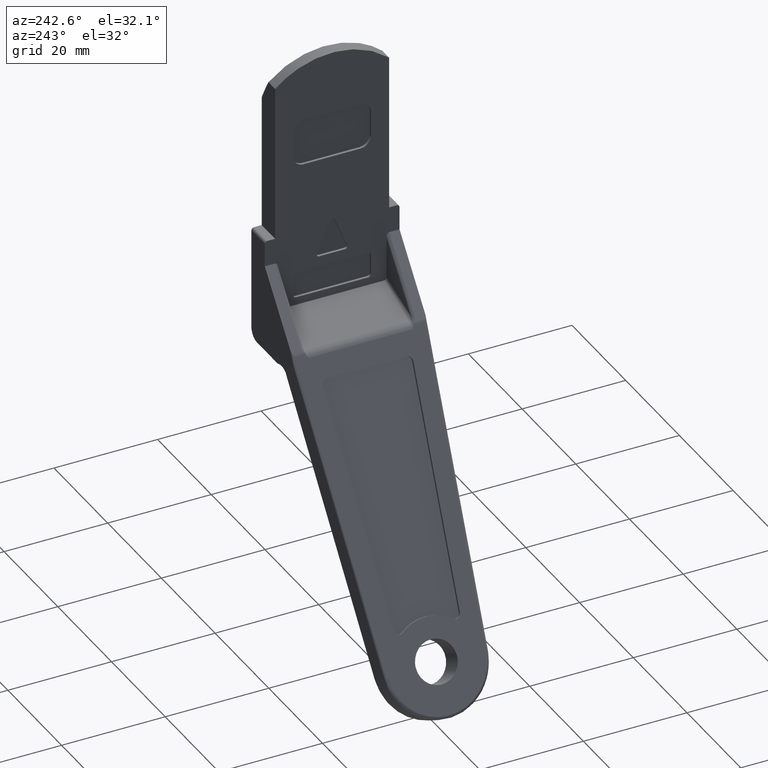
[diagram: clean part render]
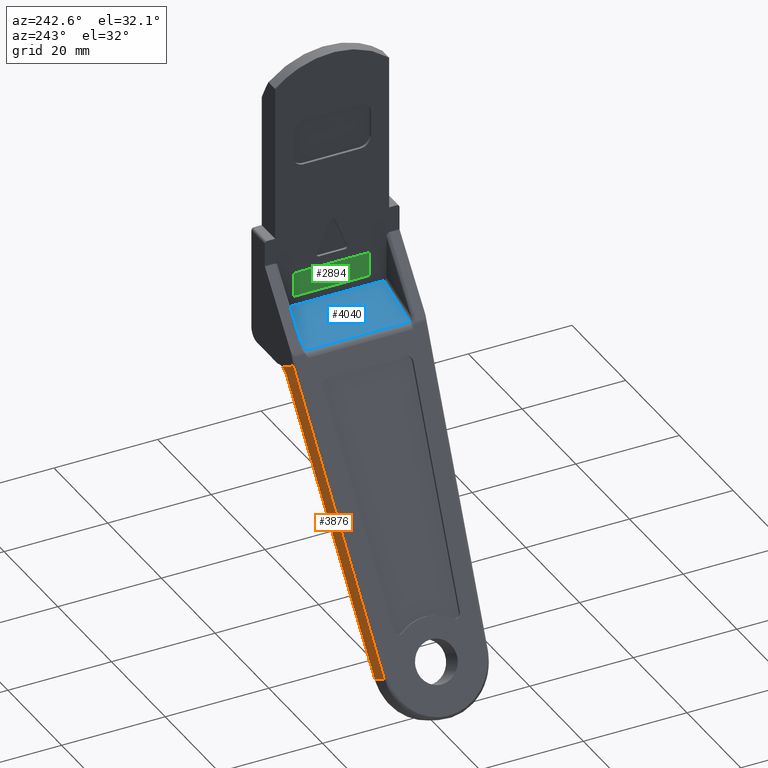
[diagram: same view with three faces highlighted in distinct colors, each labeled with its STEP entity id]
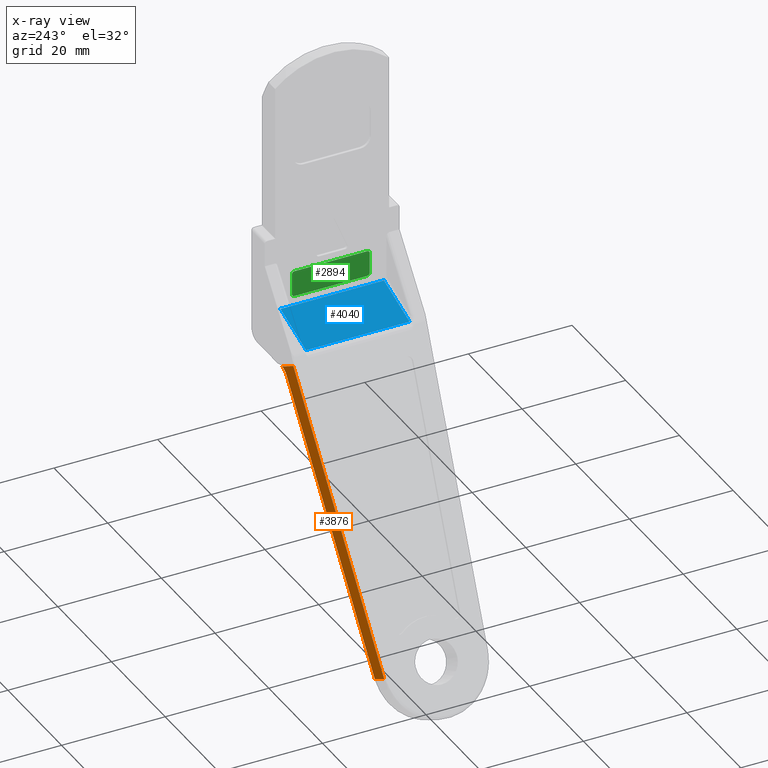
[diagram: x-ray of the same camera — body ghosted, the three highlighted faces saturated]
A machine part, auxiliary view with three faces highlighted in distinct colors.
The next image is the same camera in x-ray (body ghosted, the three faces saturated) — at least one of them is partly hidden behind the body in this view.
Their STEP definitions:

[orange] entity #3876 — the highlighted face is a freeform B-spline surface patch.
#470=CARTESIAN_POINT('',(-40.201222914413847,9.985602287830501,-87.845950522211709));
#471=VERTEX_POINT('',#470);
#537=CARTESIAN_POINT('',(-13.023773166387141,12.905514471618201,-40.773227605430357));
#538=VERTEX_POINT('',#537);
#562=CARTESIAN_POINT('',(-13.023773166387141,12.905514471618201,-40.773227605430357));
#563=CARTESIAN_POINT('',(-40.201222914413847,9.985602287830501,-87.845950522211709));
#564=QUASI_UNIFORM_CURVE('',1,(#562,#563),.UNSPECIFIED.,.F.,.U.);
#565=EDGE_CURVE('',#538,#471,#564,.T.);
#681=CARTESIAN_POINT('',(-11.535973462332599,12.999280114391521,-39.616712876335647));
#682=VERTEX_POINT('',#681);
#683=CARTESIAN_POINT('',(-11.535973462332530,12.999280114391411,-39.616712876335683));
#684=CARTESIAN_POINT('',(-12.515160426199587,12.960159191018194,-39.892284847573968));
#685=CARTESIAN_POINT('',(-13.023773166387141,12.905514471618201,-40.773227605430357));
#693=(BOUNDED_CURVE()B_SPLINE_CURVE(2,(#683,#684,#685),.UNSPECIFIED.,.F.,.U.)CURVE()GEOMETRIC_REPRESENTATION_ITEM()QUASI_UNIFORM_CURVE()RATIONAL_B_SPLINE_CURVE((1.0,0.926259705014033,1.0))REPRESENTATION_ITEM(''));
#694=EDGE_CURVE('',#682,#538,#693,.T.);
#744=CARTESIAN_POINT('',(-43.665324437025554,9.985602287830501,-85.845950538797112));
#745=VERTEX_POINT('',#744);
#811=CARTESIAN_POINT('',(-15.615138791191150,12.999280114391521,-37.261605632275653));
#812=VERTEX_POINT('',#811);
#826=CARTESIAN_POINT('',(-43.665324437025554,9.985602287830501,-85.845950538797112));
#827=CARTESIAN_POINT('',(-15.615138791191150,12.999280114391521,-37.261605632275653));
#828=QUASI_UNIFORM_CURVE('',1,(#826,#827),.UNSPECIFIED.,.F.,.U.);
#829=EDGE_CURVE('',#745,#812,#828,.T.);
#854=CARTESIAN_POINT('',(-15.615138791191150,12.999280114391521,-37.261605632275653));
#855=CARTESIAN_POINT('',(-11.535973462332599,12.999280114391521,-39.616712876335647));
#856=QUASI_UNIFORM_CURVE('',1,(#854,#855),.UNSPECIFIED.,.F.,.U.);
#857=EDGE_CURVE('',#812,#682,#856,.T.);
#3860=CARTESIAN_POINT('',(-45.270186360760633,12.322093521251981,-34.696408978296638));
#3861=CARTESIAN_POINT('',(-45.270186360760633,9.732126893975966,-90.367846956961770));
#3862=CARTESIAN_POINT('',(-9.931111538597529,13.269240425720520,-34.740472486673077));
#3863=CARTESIAN_POINT('',(-9.931111538597529,10.679273798444500,-90.411910465338195));
#3864=B_SPLINE_SURFACE_WITH_KNOTS('',1,1,((#3860,#3862),(#3861,#3863)),.UNSPECIFIED.,.F.,.F.,.U.,(2,2),(2,2),(0.0,55.731651094712440),(0.0,35.351792573190068),.UNSPECIFIED.);
#3865=ORIENTED_EDGE('',*,*,#857,.T.);
#3866=ORIENTED_EDGE('',*,*,#694,.T.);
#3867=ORIENTED_EDGE('',*,*,#565,.T.);
#3868=CARTESIAN_POINT('',(-40.201222914413847,9.985602287830501,-87.845950522211709));
#3869=CARTESIAN_POINT('',(-43.665324437025554,9.985602287830501,-85.845950538797112));
#3870=QUASI_UNIFORM_CURVE('',1,(#3868,#3869),.UNSPECIFIED.,.F.,.U.);
#3871=EDGE_CURVE('',#471,#745,#3870,.T.);
#3872=ORIENTED_EDGE('',*,*,#3871,.T.);
#3873=ORIENTED_EDGE('',*,*,#829,.T.);
#3874=EDGE_LOOP('',(#3865,#3866,#3867,#3872,#3873));
#3875=FACE_OUTER_BOUND('',#3874,.T.);
#3876=ADVANCED_FACE('',(#3875),#3864,.F.);

[blue] entity #4040 — the highlighted face is a freeform B-spline surface patch.
#2009=CARTESIAN_POINT('',(-14.565306278384661,10.0,-35.498594069228197));
#2010=VERTEX_POINT('',#2009);
#2064=CARTESIAN_POINT('',(-5.000000000000091,10.0,-32.500000000000000));
#2065=VERTEX_POINT('',#2064);
#2066=CARTESIAN_POINT('',(-5.000000000000091,10.0,-32.500000000000000));
#2067=CARTESIAN_POINT('',(-14.565306278384661,10.0,-35.498594069228197));
#2068=QUASI_UNIFORM_CURVE('',1,(#2066,#2067),.UNSPECIFIED.,.F.,.U.);
#2069=EDGE_CURVE('',#2065,#2010,#2068,.T.);
#2104=CARTESIAN_POINT('',(-14.565306278384661,-10.0,-35.498594069228197));
#2105=VERTEX_POINT('',#2104);
#2161=CARTESIAN_POINT('',(-5.000000000000091,-10.0,-32.500000000000000));
#2162=VERTEX_POINT('',#2161);
#2178=CARTESIAN_POINT('',(-14.565306278384661,-10.0,-35.498594069228197));
#2179=CARTESIAN_POINT('',(-5.000000000000091,-10.0,-32.500000000000000));
#2180=QUASI_UNIFORM_CURVE('',1,(#2178,#2179),.UNSPECIFIED.,.F.,.U.);
#2181=EDGE_CURVE('',#2105,#2162,#2180,.T.);
#4016=CARTESIAN_POINT('',(-14.565306278384661,10.0,-35.498594069228197));
#4017=CARTESIAN_POINT('',(-14.565306278384661,-10.0,-35.498594069228197));
#4018=QUASI_UNIFORM_CURVE('',1,(#4016,#4017),.UNSPECIFIED.,.F.,.U.);
#4019=EDGE_CURVE('',#2010,#2105,#4018,.T.);
#4025=CARTESIAN_POINT('',(-15.043093218658321,-10.998999961236120,-35.648373809025571));
#4026=CARTESIAN_POINT('',(-4.522212717644443,-10.998999961236120,-32.350220152964489));
#4027=CARTESIAN_POINT('',(-15.043093218658321,10.999000497677921,-35.648373809025557));
#4028=CARTESIAN_POINT('',(-4.522212717644443,10.999000497677921,-32.350220152964489));
#4029=B_SPLINE_SURFACE_WITH_KNOTS('',1,1,((#4025,#4027),(#4026,#4028)),.UNSPECIFIED.,.F.,.F.,.U.,(2,2),(2,2),(0.0,11.025730998695870),(0.0,21.998000458914039),.UNSPECIFIED.);
#4030=ORIENTED_EDGE('',*,*,#4019,.T.);
#4031=ORIENTED_EDGE('',*,*,#2181,.T.);
#4032=CARTESIAN_POINT('',(-5.000000000000091,10.0,-32.500000000000000));
#4033=CARTESIAN_POINT('',(-5.000000000000091,-10.0,-32.500000000000000));
#4034=QUASI_UNIFORM_CURVE('',1,(#4032,#4033),.UNSPECIFIED.,.F.,.U.);
#4035=EDGE_CURVE('',#2065,#2162,#4034,.T.);
#4036=ORIENTED_EDGE('',*,*,#4035,.F.);
#4037=ORIENTED_EDGE('',*,*,#2069,.T.);
#4038=EDGE_LOOP('',(#4030,#4031,#4036,#4037));
#4039=FACE_OUTER_BOUND('',#4038,.T.);
#4040=ADVANCED_FACE('',(#4039),#4029,.T.);

[green] entity #2894 — the highlighted face is a freeform B-spline surface patch.
#2799=CARTESIAN_POINT('',(-4.500000000000090,8.249249970927089,-25.750250009690969));
#2800=CARTESIAN_POINT('',(-4.500000000000090,-8.249250373258443,-25.750250009690969));
#2801=CARTESIAN_POINT('',(-4.500000000000090,8.249249970927089,-31.249750124419489));
#2802=CARTESIAN_POINT('',(-4.500000000000090,-8.249250373258443,-31.249750124419489));
#2803=B_SPLINE_SURFACE_WITH_KNOTS('',1,1,((#2799,#2801),(#2800,#2802)),.UNSPECIFIED.,.F.,.F.,.U.,(2,2),(2,2),(0.0,16.498500344185530),(0.0,5.499500114728519),.UNSPECIFIED.);
#2804=CARTESIAN_POINT('',(-4.500000000000060,-7.0,-26.0));
#2805=VERTEX_POINT('',#2804);
#2806=CARTESIAN_POINT('',(-4.500000000000060,7.0,-26.0));
#2807=VERTEX_POINT('',#2806);
#2808=CARTESIAN_POINT('',(-4.500000000000060,-7.0,-26.0));
#2809=CARTESIAN_POINT('',(-4.500000000000060,7.0,-26.0));
#2810=QUASI_UNIFORM_CURVE('',1,(#2808,#2809),.UNSPECIFIED.,.F.,.U.);
#2811=EDGE_CURVE('',#2805,#2807,#2810,.T.);
#2812=ORIENTED_EDGE('',*,*,#2811,.T.);
#2813=CARTESIAN_POINT('',(-4.500000000000060,7.500000000000000,-26.500000000000000));
#2814=VERTEX_POINT('',#2813);
#2815=CARTESIAN_POINT('',(-4.500000000000060,7.0,-26.0));
#2816=CARTESIAN_POINT('',(-4.500000000000060,7.500000000000000,-26.000000000000004));
#2817=CARTESIAN_POINT('',(-4.500000000000060,7.500000000000000,-26.500000000000000));
#2825=(BOUNDED_CURVE()B_SPLINE_CURVE(2,(#2815,#2816,#2817),.UNSPECIFIED.,.F.,.U.)CURVE()GEOMETRIC_REPRESENTATION_ITEM()QUASI_UNIFORM_CURVE()RATIONAL_B_SPLINE_CURVE((1.0,0.707106781186548,1.0))REPRESENTATION_ITEM(''));
#2826=EDGE_CURVE('',#2807,#2814,#2825,.T.);
#2827=ORIENTED_EDGE('',*,*,#2826,.T.);
#2828=CARTESIAN_POINT('',(-4.500000000000060,7.500000000000000,-30.500000000000000));
#2829=VERTEX_POINT('',#2828);
#2830=CARTESIAN_POINT('',(-4.500000000000060,7.500000000000000,-26.500000000000000));
#2831=CARTESIAN_POINT('',(-4.500000000000060,7.500000000000000,-30.500000000000000));
#2832=QUASI_UNIFORM_CURVE('',1,(#2830,#2831),.UNSPECIFIED.,.F.,.U.);
#2833=EDGE_CURVE('',#2814,#2829,#2832,.T.);
#2834=ORIENTED_EDGE('',*,*,#2833,.T.);
#2835=CARTESIAN_POINT('',(-4.500000000000060,7.0,-31.0));
#2836=VERTEX_POINT('',#2835);
#2837=CARTESIAN_POINT('',(-4.500000000000060,7.500000000000000,-30.500000000000000));
#2838=CARTESIAN_POINT('',(-4.500000000000060,7.500000000000000,-31.000000000000007));
#2839=CARTESIAN_POINT('',(-4.500000000000060,7.0,-31.0));
#2847=(BOUNDED_CURVE()B_SPLINE_CURVE(2,(#2837,#2838,#2839),.UNSPECIFIED.,.F.,.U.)CURVE()GEOMETRIC_REPRESENTATION_ITEM()QUASI_UNIFORM_CURVE()RATIONAL_B_SPLINE_CURVE((1.0,0.707106781186548,1.0))REPRESENTATION_ITEM(''));
#2848=EDGE_CURVE('',#2829,#2836,#2847,.T.);
#2849=ORIENTED_EDGE('',*,*,#2848,.T.);
#2850=CARTESIAN_POINT('',(-4.500000000000060,-7.0,-31.0));
#2851=VERTEX_POINT('',#2850);
#2852=CARTESIAN_POINT('',(-4.500000000000060,7.0,-31.0));
#2853=CARTESIAN_POINT('',(-4.500000000000060,-7.0,-31.0));
#2854=QUASI_UNIFORM_CURVE('',1,(#2852,#2853),.UNSPECIFIED.,.F.,.U.);
#2855=EDGE_CURVE('',#2836,#2851,#2854,.T.);
#2856=ORIENTED_EDGE('',*,*,#2855,.T.);
#2857=CARTESIAN_POINT('',(-4.500000000000060,-7.500000000000000,-30.500000000000000));
#2858=VERTEX_POINT('',#2857);
#2859=CARTESIAN_POINT('',(-4.500000000000060,-7.0,-31.0));
#2860=CARTESIAN_POINT('',(-4.500000000000060,-7.500000000000000,-31.000000000000007));
#2861=CARTESIAN_POINT('',(-4.500000000000060,-7.500000000000000,-30.500000000000000));
#2869=(BOUNDED_CURVE()B_SPLINE_CURVE(2,(#2859,#2860,#2861),.UNSPECIFIED.,.F.,.U.)CURVE()GEOMETRIC_REPRESENTATION_ITEM()QUASI_UNIFORM_CURVE()RATIONAL_B_SPLINE_CURVE((1.0,0.707106781186548,1.0))REPRESENTATION_ITEM(''));
#2870=EDGE_CURVE('',#2851,#2858,#2869,.T.);
#2871=ORIENTED_EDGE('',*,*,#2870,.T.);
#2872=CARTESIAN_POINT('',(-4.500000000000060,-7.500000000000000,-26.500000000000000));
#2873=VERTEX_POINT('',#2872);
#2874=CARTESIAN_POINT('',(-4.500000000000060,-7.500000000000000,-30.500000000000000));
#2875=CARTESIAN_POINT('',(-4.500000000000060,-7.500000000000000,-26.500000000000000));
#2876=QUASI_UNIFORM_CURVE('',1,(#2874,#2875),.UNSPECIFIED.,.F.,.U.);
#2877=EDGE_CURVE('',#2858,#2873,#2876,.T.);
#2878=ORIENTED_EDGE('',*,*,#2877,.T.);
#2879=CARTESIAN_POINT('',(-4.500000000000060,-7.500000000000000,-26.500000000000000));
#2880=CARTESIAN_POINT('',(-4.500000000000060,-7.500000000000000,-26.000000000000004));
#2881=CARTESIAN_POINT('',(-4.500000000000060,-7.0,-26.0));
#2889=(BOUNDED_CURVE()B_SPLINE_CURVE(2,(#2879,#2880,#2881),.UNSPECIFIED.,.F.,.U.)CURVE()GEOMETRIC_REPRESENTATION_ITEM()QUASI_UNIFORM_CURVE()RATIONAL_B_SPLINE_CURVE((1.0,0.707106781186548,1.0))REPRESENTATION_ITEM(''));
#2890=EDGE_CURVE('',#2873,#2805,#2889,.T.);
#2891=ORIENTED_EDGE('',*,*,#2890,.T.);
#2892=EDGE_LOOP('',(#2812,#2827,#2834,#2849,#2856,#2871,#2878,#2891));
#2893=FACE_OUTER_BOUND('',#2892,.T.);
#2894=ADVANCED_FACE('',(#2893),#2803,.F.);